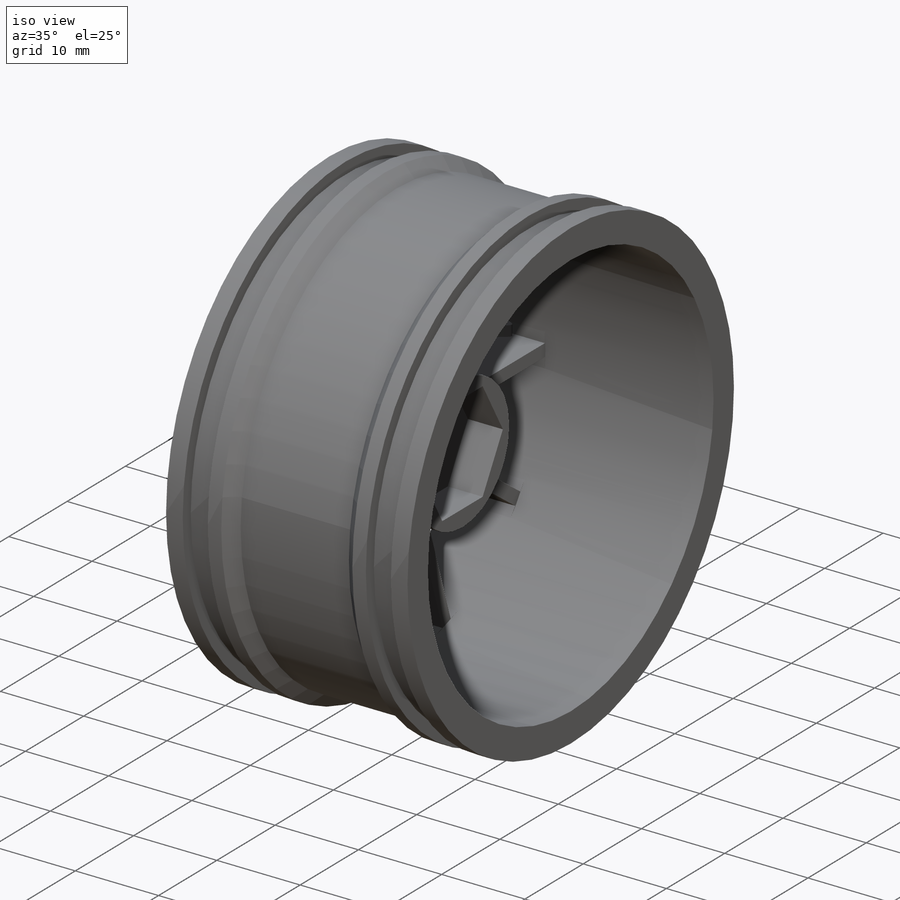
[diagram: iso view]
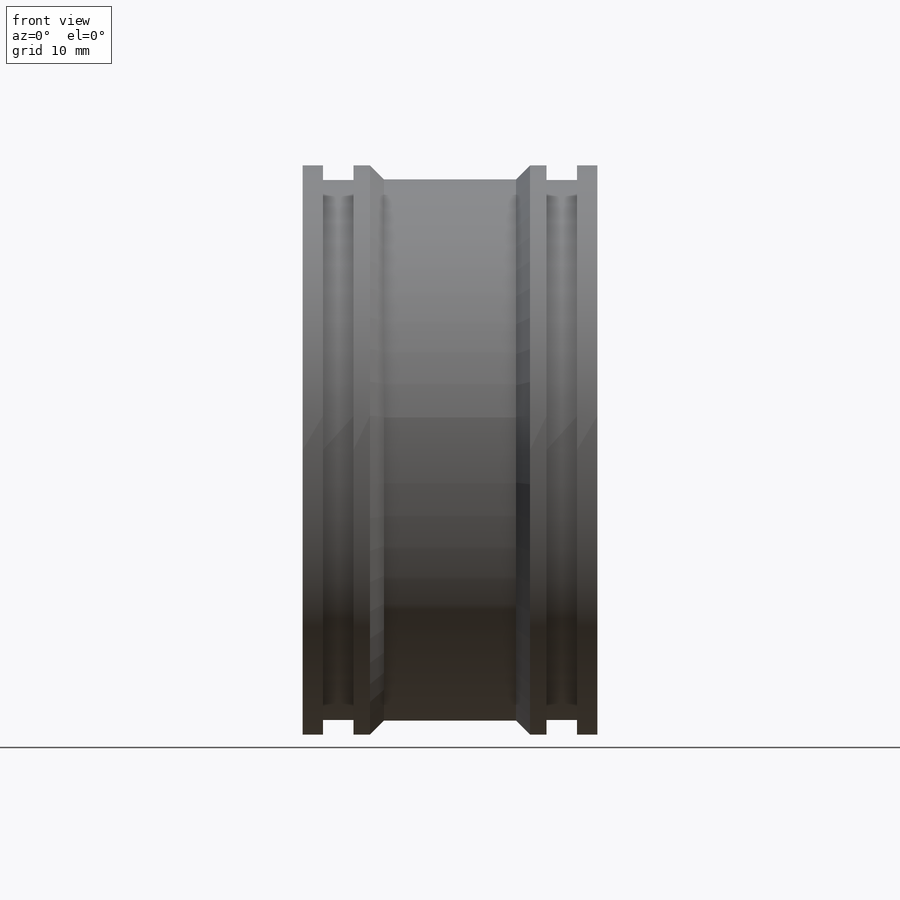
[diagram: front view]
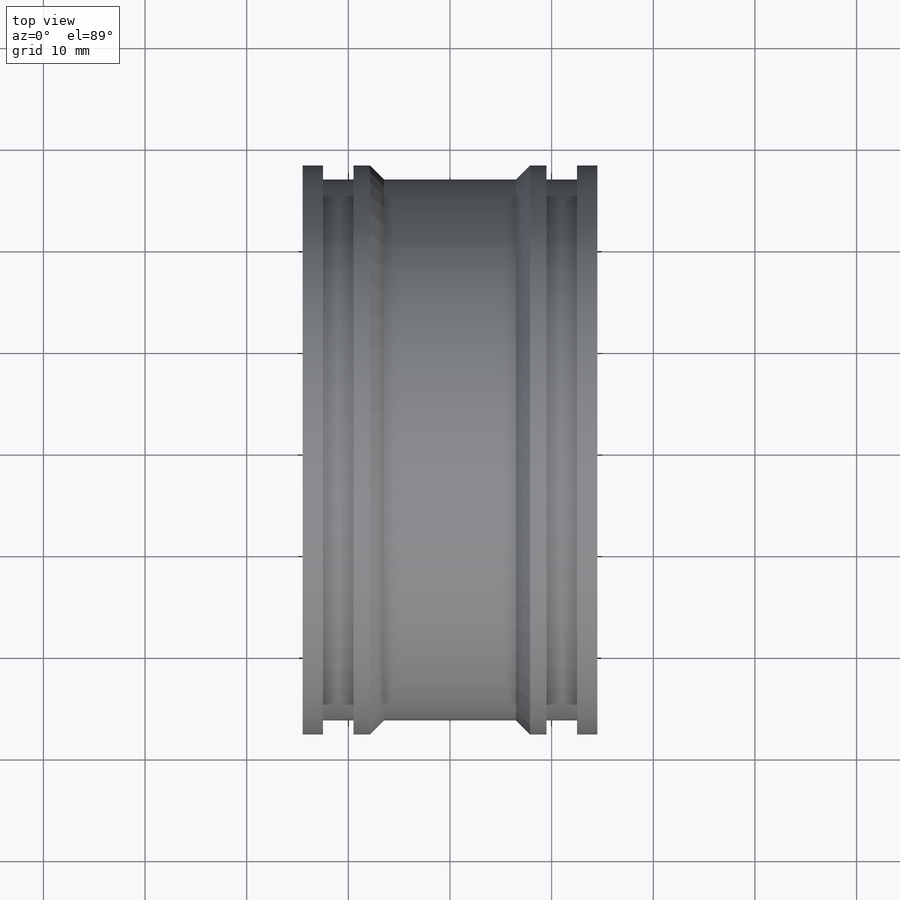
[diagram: top view]
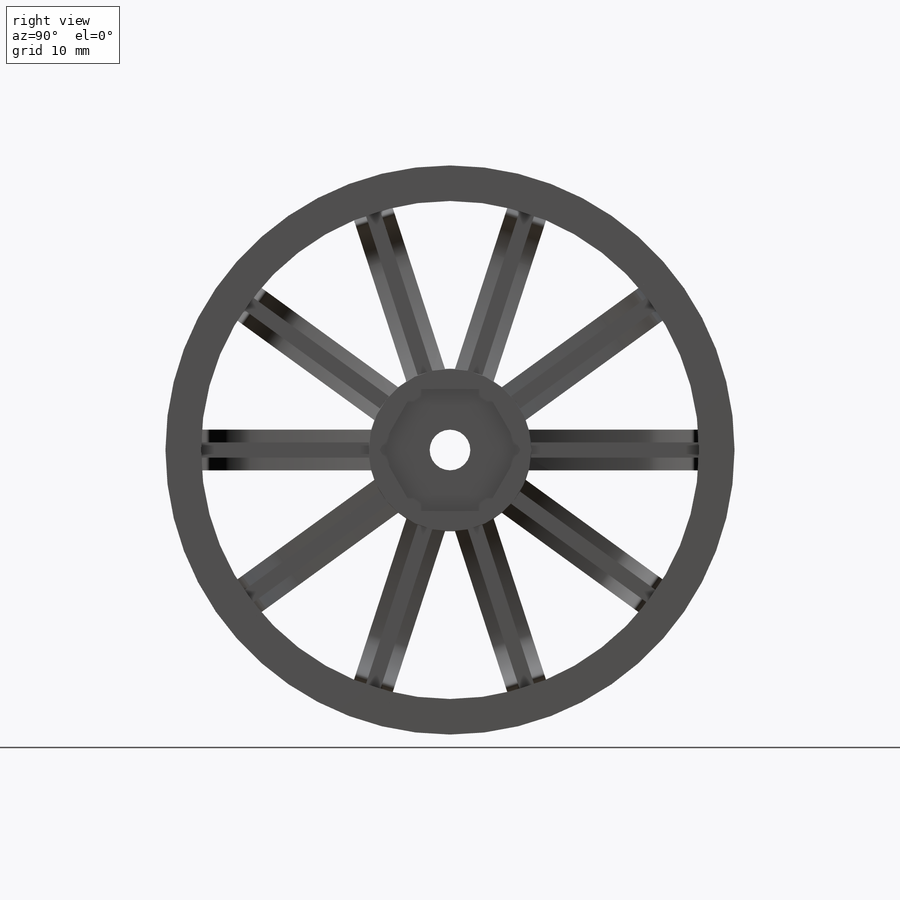
[diagram: right view]
SOLIDWORKS PART (.sldprt)
format: sldprt  version: not decoded by parser v0  size: 541,696 bytes
history: native  units: mm
features: sketch x9, plane x5, cut_extrude x4, extrude x3, chamfer x3, material x1, revolve x1, mirror x1, pattern_circular x1 (+13 scaffold rows collapsed)
feature tree (41):
  scaffold x13  (default folders/planes/origin — collapsed)
  material  "3.0517 (EN-AW 3003)"
  sketch  "Sketch1"  dims[D1=14.5mm D2=2.0mm D3=2.0mm D4=1.0mm D5=3.0mm D6=2.0mm D7=8.5mm D8=0.625mm D9=26.0mm D10=26.0mm]
  revolve  "Revolve1"  Angle=360deg
  plane  "Plane2"
  plane  "refernce plane for inner hexagon"  Offset=13mm
  sketch  "Sketch2"  dims[D1=12.0mm D2=~6.928203mm]
  extrude  "Boss-Extrude1"  Depth=9.7mm
  sketch  "Sketch6"  dims[D1=12.0mm]
  cut_extrude  "Cut-Extrude1"  Depth=4.2mm
  sketch  "Sketch7"  dims[D1=4.0mm]
  cut_extrude  "Cut-Extrude2"  [1 undecoded]
  sketch  "Sketch8"  dims[D1=9.5mm]
  cut_extrude  "Cut-Extrude3"  Depth=2mm
  plane  "Plane7"  Offset=2.5mm
  sketch  "Sketch14"
  plane  "Plane8"
  sketch  "Sketch16"  dims[D1=5.0mm]
  extrude  "Boss-Extrude3"  Depth=4mm
  plane  "Plane9"  Offset=2mm
  sketch  "Sketch17"  dims[D1=49.0mm]
  extrude  "Boss-Extrude4"  [1 undecoded]
  sketch  "Sketch18"  dims[D1=4.5mm]
  cut_extrude  "Cut-Extrude4"  Depth=1.25mm
  mirror  "Mirror2"
  pattern_circular  "CirPattern1"  Count=10 Angle=360deg
  chamfer  "Chamfer3"  Distance=1.75mm Angle=45deg
  chamfer  "Chamfer4"  Distance=2mm Angle=5deg
  chamfer  "Chamfer5"  Distance=2mm Angle=45deg
decode coverage: 18 of 22 modeling features carry decoded parameters
note: ~ marks probable driven/reference dimensions
note: 2 parameter values undecoded
note: suppression state not decoded; provenance and decode notes live in map.json
